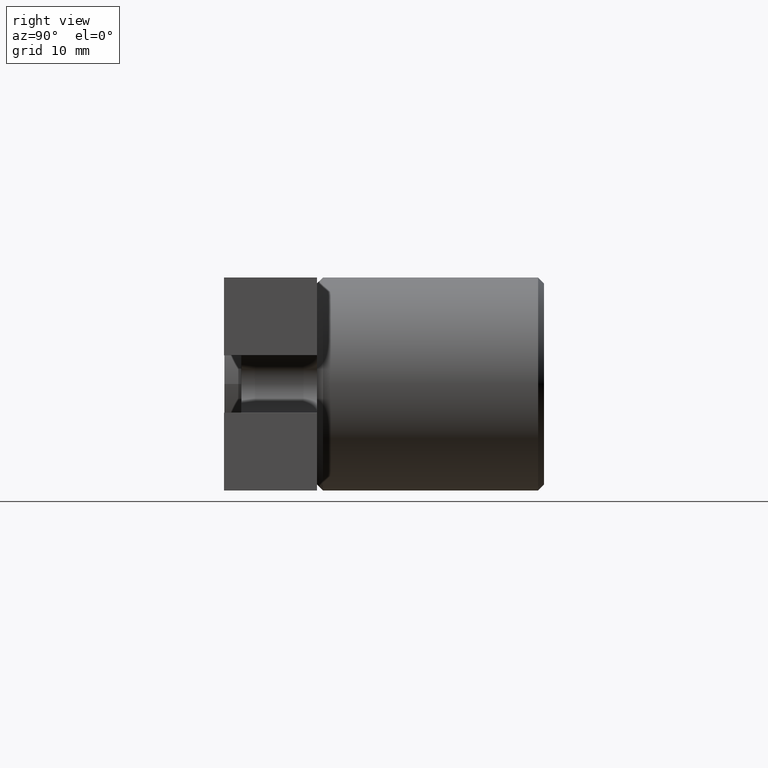
[diagram: clean part render]
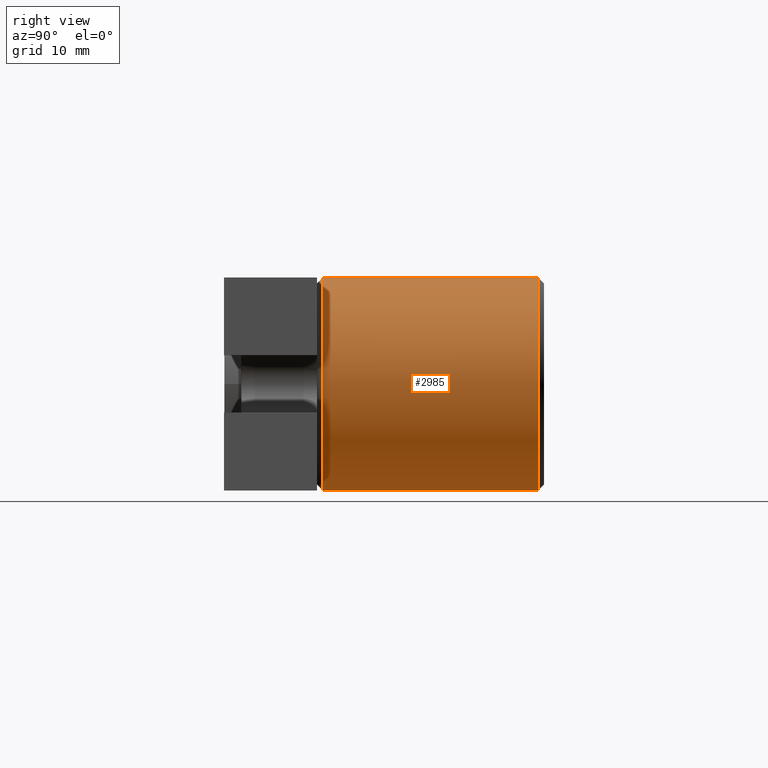
[diagram: same view with one face highlighted and labeled with its STEP entity id]
A machine part, right view. The second image highlights one B-rep face of the part: STEP entity #2985.
In plain terms, the highlighted cylindrical surface (partial cylindrical patch) has radius 12.4968 mm, axis along (-0, -1, -0).
Its self-contained STEP definition (entity closure, byte-faithful):
#24 = EDGE_CURVE ( 'NONE', #344, #1083, #3045, .T. ) ;
#302 = EDGE_CURVE ( 'NONE', #1083, #2969, #1238, .T. ) ;
#344 = VERTEX_POINT ( 'NONE', #2743 ) ;
#475 = AXIS2_PLACEMENT_3D ( 'NONE', #853, #2568, #1976 ) ;
#622 = DIRECTION ( 'NONE',  ( -0.0000000000000000000, -1.000000000000000000, -0.0000000000000000000 ) ) ;
#679 = DIRECTION ( 'NONE',  ( 0.0000000000000000000, 0.0000000000000000000, 1.000000000000000000 ) ) ;
#722 = AXIS2_PLACEMENT_3D ( 'NONE', #1276, #3490, #679 ) ;
#853 = CARTESIAN_POINT ( 'NONE',  ( 4.123066643891380800, 31.62713478776490900, -1.839923381405735800E-015 ) ) ;
#1033 = DIRECTION ( 'NONE',  ( -0.0000000000000000000, -1.000000000000000000, -0.0000000000000000000 ) ) ;
#1083 = VERTEX_POINT ( 'NONE', #3008 ) ;
#1132 = VERTEX_POINT ( 'NONE', #2755 ) ;
#1223 = CIRCLE ( 'NONE', #722, 12.49680000000000600 ) ;
#1238 = LINE ( 'NONE', #3001, #2953 ) ;
#1245 = CARTESIAN_POINT ( 'NONE',  ( 4.123066643891380800, 32.32713478776489800, -12.49680000000000700 ) ) ;
#1276 = CARTESIAN_POINT ( 'NONE',  ( 4.123066643891380800, 6.398134787764880600, -1.839923381405735800E-015 ) ) ;
#1426 = EDGE_CURVE ( 'NONE', #2969, #1132, #1223, .T. ) ;
#1525 = EDGE_CURVE ( 'NONE', #344, #1132, #2486, .T. ) ;
#1640 = ORIENTED_EDGE ( 'NONE', *, *, #1525, .F. ) ;
#1818 = DIRECTION ( 'NONE',  ( -0.0000000000000000000, -1.000000000000000000, -0.0000000000000000000 ) ) ;
#1976 = DIRECTION ( 'NONE',  ( 0.0000000000000000000, 0.0000000000000000000, 1.000000000000000000 ) ) ;
#2105 = ORIENTED_EDGE ( 'NONE', *, *, #24, .T. ) ;
#2293 = CARTESIAN_POINT ( 'NONE',  ( 4.123066643891382600, 6.398134787764880600, 12.49680000000000400 ) ) ;
#2331 = ORIENTED_EDGE ( 'NONE', *, *, #1426, .T. ) ;
#2380 = AXIS2_PLACEMENT_3D ( 'NONE', #3429, #622, #3153 ) ;
#2486 = LINE ( 'NONE', #1245, #2856 ) ;
#2568 = DIRECTION ( 'NONE',  ( 0.0000000000000000000, -1.000000000000000000, 0.0000000000000000000 ) ) ;
#2677 = ORIENTED_EDGE ( 'NONE', *, *, #302, .T. ) ;
#2743 = CARTESIAN_POINT ( 'NONE',  ( 4.123066643891380800, 31.62713478776490900, -12.49680000000000700 ) ) ;
#2755 = CARTESIAN_POINT ( 'NONE',  ( 4.123066643891380800, 6.398134787764880600, -12.49680000000000700 ) ) ;
#2856 = VECTOR ( 'NONE', #1818, 1000.000000000000000 ) ;
#2953 = VECTOR ( 'NONE', #1033, 1000.000000000000000 ) ;
#2969 = VERTEX_POINT ( 'NONE', #2293 ) ;
#2985 = ADVANCED_FACE ( 'NONE', ( #3239 ), #3409, .T. ) ;
#3001 = CARTESIAN_POINT ( 'NONE',  ( 4.123066643891382600, 32.32713478776489800, 12.49680000000000400 ) ) ;
#3008 = CARTESIAN_POINT ( 'NONE',  ( 4.123066643891382600, 31.62713478776490900, 12.49680000000000400 ) ) ;
#3045 = CIRCLE ( 'NONE', #475, 12.49680000000000600 ) ;
#3064 = EDGE_LOOP ( 'NONE', ( #2105, #2677, #2331, #1640 ) ) ;
#3153 = DIRECTION ( 'NONE',  ( 0.0000000000000000000, 0.0000000000000000000, -1.000000000000000000 ) ) ;
#3239 = FACE_OUTER_BOUND ( 'NONE', #3064, .T. ) ;
#3409 = CYLINDRICAL_SURFACE ( 'NONE', #2380, 12.49680000000000600 ) ;
#3429 = CARTESIAN_POINT ( 'NONE',  ( 4.123066643891380800, 32.32713478776489800, -1.839923381405735800E-015 ) ) ;
#3490 = DIRECTION ( 'NONE',  ( -0.0000000000000000000, 1.000000000000000000, -0.0000000000000000000 ) ) ;